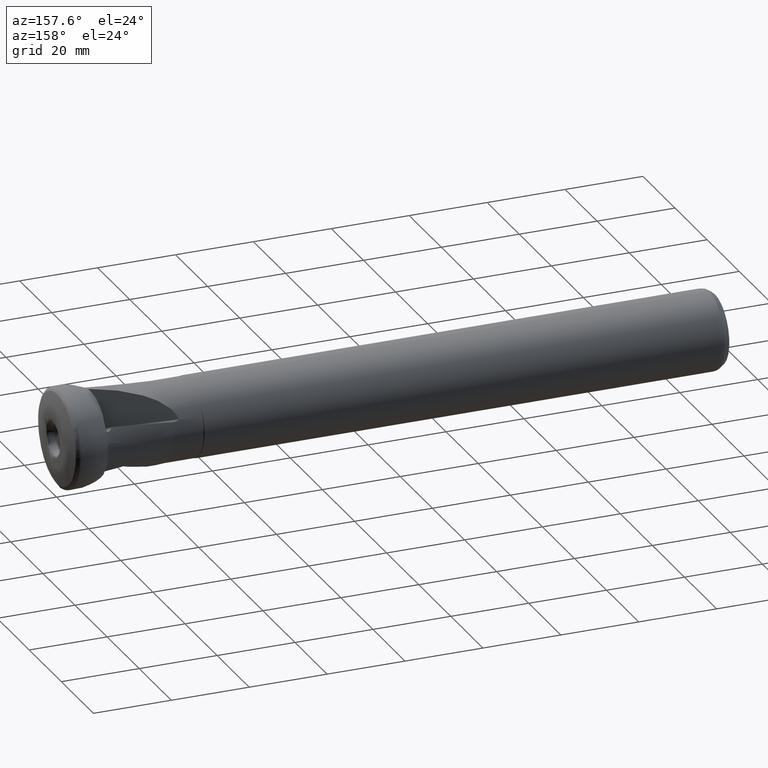
[diagram: clean part render]
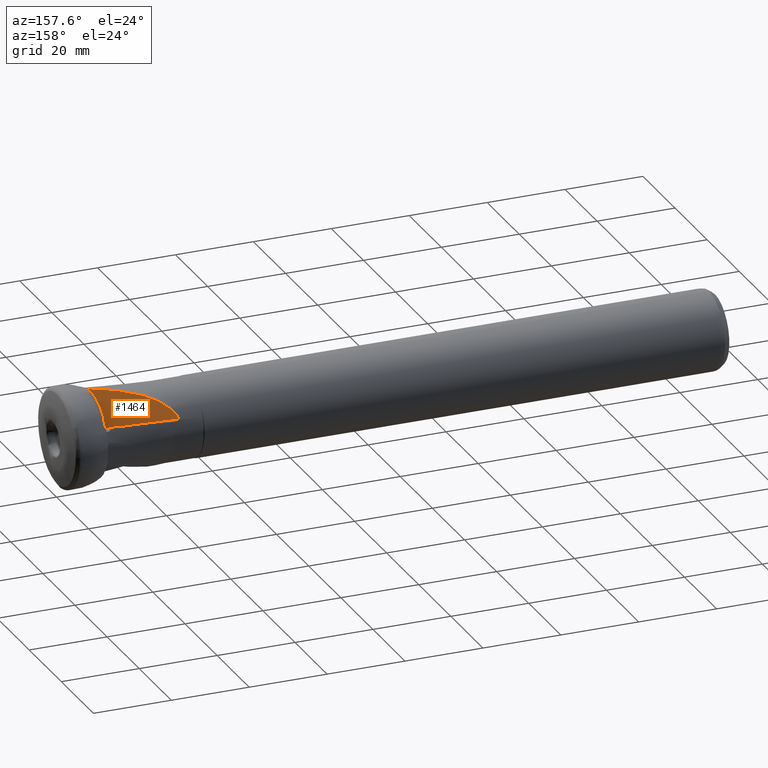
[diagram: same view with one face highlighted and labeled with its STEP entity id]
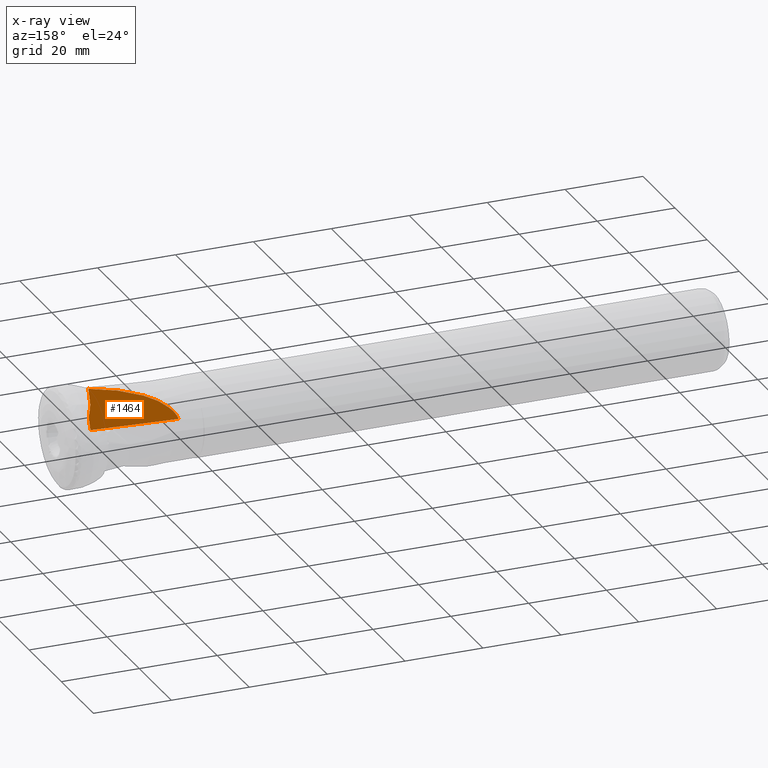
[diagram: x-ray of the same camera — body ghosted, the highlighted face saturated]
A machine part, auxiliary view. The second image highlights one B-rep face of the part: STEP entity #1464.
The next image is the same camera in x-ray: the body ghosted, the highlighted face saturated — about 0% of this face is hidden behind the body in this view.
In plain terms, the highlighted planar face has unit normal (-0.3701, -0.8683, -0.3302).
Its self-contained STEP definition (entity closure, byte-faithful):
#34 = CARTESIAN_POINT ( 'NONE',  ( -27.61564122826636900, 8.963413834609408300, 4.203238326520708100 ) ) ;
#101 = CARTESIAN_POINT ( 'NONE',  ( -16.86874251824682600, 1.855739922466798800, 10.84814431742854000 ) ) ;
#184 = CARTESIAN_POINT ( 'NONE',  ( -8.809361198083662400, -1.484334805425515200, 10.59798843382201200 ) ) ;
#193 = VERTEX_POINT ( 'NONE', #837 ) ;
#200 = CARTESIAN_POINT ( 'NONE',  ( -8.772247899974990700, -0.2813029466145836000, 7.392879770641500600 ) ) ;
#212 = CARTESIAN_POINT ( 'NONE',  ( -8.008849885953161200, 1.828964597262597400, 0.9880425032267883300 ) ) ;
#355 = CARTESIAN_POINT ( 'NONE',  ( -8.029264572803558800, 0.5343311011464219100, 4.415311757594615500 ) ) ;
#390 = EDGE_CURVE ( 'NONE', #2407, #193, #1813, .T. ) ;
#479 = CARTESIAN_POINT ( 'NONE',  ( -8.810321178378581300, -1.445892021877493500, 10.49797469597539600 ) ) ;
#488 = CARTESIAN_POINT ( 'NONE',  ( -8.626668308227394300, -0.03581247867179425400, 6.584163108031313000 ) ) ;
#490 = CARTESIAN_POINT ( 'NONE',  ( -27.61564122826636900, 8.963413834609408300, 4.203238326520708100 ) ) ;
#493 = CARTESIAN_POINT ( 'NONE',  ( -8.008849885953161200, 1.828964597262599400, 0.9880425032267898800 ) ) ;
#502 = CARTESIAN_POINT ( 'NONE',  ( -25.80000000000000100, 7.206657879620563800, 6.787789198708425800 ) ) ;
#713 = VERTEX_POINT ( 'NONE', #355 ) ;
#776 = CARTESIAN_POINT ( 'NONE',  ( -8.812428754891604000, -1.330846290105649300, 10.19781096538148500 ) ) ;
#788 = CARTESIAN_POINT ( 'NONE',  ( -8.400509622133460800, 0.1769991327255253900, 5.771063089334365500 ) ) ;
#803 = DIRECTION ( 'NONE',  ( -0.3701102517259635700, -0.8683207217601667200, -0.3302083065721499500 ) ) ;
#815 = EDGE_CURVE ( 'NONE', #1291, #2407, #2875, .T. ) ;
#837 = CARTESIAN_POINT ( 'NONE',  ( -25.80000000000000100, 7.206657879620563800, 6.787789198708425800 ) ) ;
#887 = ORIENTED_EDGE ( 'NONE', *, *, #3512, .T. ) ;
#916 = LINE ( 'NONE', #493, #3249 ) ;
#1096 = CARTESIAN_POINT ( 'NONE',  ( -8.816561759687939300, -1.075373070746809900, 9.530647183024111500 ) ) ;
#1108 = CARTESIAN_POINT ( 'NONE',  ( -8.176938290410074500, 0.3910066280983208200, 4.957718363106650400 ) ) ;
#1258 = VECTOR ( 'NONE', #1911, 1000.000000000000000 ) ;
#1283 = CARTESIAN_POINT ( 'NONE',  ( -22.92936467704586100, 4.987555778449552300, 9.405654221941683000 ) ) ;
#1291 = VERTEX_POINT ( 'NONE', #3204 ) ;
#1333 = ORIENTED_EDGE ( 'NONE', *, *, #815, .T. ) ;
#1392 = CARTESIAN_POINT ( 'NONE',  ( -8.740307214642635700, -1.608908404413212300, 10.84817066287859600 ) ) ;
#1403 = CARTESIAN_POINT ( 'NONE',  ( -8.816094279808940100, -0.7710488903506985700, 8.729867778619457400 ) ) ;
#1416 = CARTESIAN_POINT ( 'NONE',  ( -8.029264572803558800, 0.5343311011464219100, 4.415311757594615500 ) ) ;
#1417 = CARTESIAN_POINT ( 'NONE',  ( -27.41783301019366800, 8.517416510551241200, 5.154328479900343000 ) ) ;
#1464 = ADVANCED_FACE ( 'Fl�che12', ( #2323 ), #1716, .F. ) ;
#1500 = ORIENTED_EDGE ( 'NONE', *, *, #2592, .T. ) ;
#1698 = CARTESIAN_POINT ( 'NONE',  ( -8.815983503714962300, -0.5680846605352803900, 8.196025829812121800 ) ) ;
#1716 = PLANE ( 'NONE',  #3080 ) ;
#1813 =( BOUNDED_CURVE ( )  B_SPLINE_CURVE ( 3, ( #490, #1417, #2337, #502 ),
 .UNSPECIFIED., .F., .F. ) 
 B_SPLINE_CURVE_WITH_KNOTS ( ( 4, 4 ),
 ( 3.216684054430979200, 3.533673707329589400 ),
 .UNSPECIFIED. ) 
 CURVE ( )  GEOMETRIC_REPRESENTATION_ITEM ( )  RATIONAL_B_SPLINE_CURVE ( ( 1.000000000000000000, 0.9916439776872798500, 0.9916439776872798500, 1.000000000000000000 ) ) 
 REPRESENTATION_ITEM ( '' )  );
#1902 = EDGE_CURVE ( 'NONE', #2408, #713, #3868, .T. ) ;
#1911 = DIRECTION ( 'NONE',  ( -0.9289711258367763200, 0.3480661720179835100, 0.1259467635880329500 ) ) ;
#1986 = CARTESIAN_POINT ( 'NONE',  ( -8.808739993176711600, -1.497259284078811900, 10.63127856647261500 ) ) ;
#1998 = CARTESIAN_POINT ( 'NONE',  ( -8.803594301779597200, -0.4208508354323531900, 7.794971255193382300 ) ) ;
#2220 = CARTESIAN_POINT ( 'NONE',  ( -8.740307214642635700, -1.608908404413212300, 10.84817066287859600 ) ) ;
#2286 = EDGE_LOOP ( 'NONE', ( #1500, #2326, #887, #1333, #2477 ) ) ;
#2311 = CARTESIAN_POINT ( 'NONE',  ( -8.810016241289693200, -1.458700773734822500, 10.53131499691803100 ) ) ;
#2323 = FACE_OUTER_BOUND ( 'NONE', #2286, .T. ) ;
#2324 = CARTESIAN_POINT ( 'NONE',  ( -8.735105501019457800, -0.1948572508413580800, 7.123930232406306300 ) ) ;
#2326 = ORIENTED_EDGE ( 'NONE', *, *, #1902, .T. ) ;
#2337 = CARTESIAN_POINT ( 'NONE',  ( -26.80751947391127700, 7.926896796313355000, 6.023104952889310600 ) ) ;
#2407 = VERTEX_POINT ( 'NONE', #34 ) ;
#2408 = VERTEX_POINT ( 'NONE', #2476 ) ;
#2476 = CARTESIAN_POINT ( 'NONE',  ( -8.740307214642635700, -1.608908404413212300, 10.84817066287859600 ) ) ;
#2477 = ORIENTED_EDGE ( 'NONE', *, *, #390, .T. ) ;
#2527 = CARTESIAN_POINT ( 'NONE',  ( -27.68627112306955200, 8.989877388137005100, 4.212814088797504300 ) ) ;
#2592 = EDGE_CURVE ( 'NONE', #193, #2408, #3161, .T. ) ;
#2613 = CARTESIAN_POINT ( 'NONE',  ( -8.811733069721789500, -1.381889535522184300, 10.33125529918755200 ) ) ;
#2624 = CARTESIAN_POINT ( 'NONE',  ( -8.550934102924426100, 0.03499191560531933500, 6.313088980730751300 ) ) ;
#2788 = CARTESIAN_POINT ( 'NONE',  ( -25.80000000000000100, 7.206657879620563800, 6.787789198708425800 ) ) ;
#2875 = LINE ( 'NONE', #2527, #1258 ) ;
#2923 = CARTESIAN_POINT ( 'NONE',  ( -8.813964737758379200, -1.177918199004973200, 9.797390549526245000 ) ) ;
#2931 = CARTESIAN_POINT ( 'NONE',  ( -8.325561742397697500, 0.2481303105708135800, 5.500010991188417200 ) ) ;
#2948 = DIRECTION ( 'NONE',  ( 0.9199208428287069000, -0.3921041225609872000, 0.0000000000000000000 ) ) ;
#3080 = AXIS2_PLACEMENT_3D ( 'NONE', #212, #803, #2948 ) ;
#3161 =( BOUNDED_CURVE ( )  B_SPLINE_CURVE ( 3, ( #2788, #1283, #101, #2220 ),
 .UNSPECIFIED., .F., .F. ) 
 B_SPLINE_CURVE_WITH_KNOTS ( ( 4, 4 ),
 ( 3.477441010317361400, 4.344822891366477300 ),
 .UNSPECIFIED. ) 
 CURVE ( )  GEOMETRIC_REPRESENTATION_ITEM ( )  RATIONAL_B_SPLINE_CURVE ( ( 1.000000000000000000, 0.9382806109319690200, 0.9382806109319690200, 1.000000000000000000 ) ) 
 REPRESENTATION_ITEM ( '' )  );
#3204 = CARTESIAN_POINT ( 'NONE',  ( -8.012170204761533300, 1.618400703796910600, 1.545466021403842300 ) ) ;
#3218 = DIRECTION ( 'NONE',  ( 0.005572156574991122400, 0.3533681706926227200, -0.9354677370238127000 ) ) ;
#3227 = CARTESIAN_POINT ( 'NONE',  ( -8.817057440993915300, -0.8721629611090624400, 8.996838405872200200 ) ) ;
#3240 = CARTESIAN_POINT ( 'NONE',  ( -8.105073412247536500, 0.4636491651778553700, 4.686147519522227100 ) ) ;
#3249 = VECTOR ( 'NONE', #3218, 1000.000000000000100 ) ;
#3507 = CARTESIAN_POINT ( 'NONE',  ( -8.768100953148493900, -1.575070916184625900, 10.79034339364780400 ) ) ;
#3512 = EDGE_CURVE ( 'NONE', #713, #1291, #916, .T. ) ;
#3522 = CARTESIAN_POINT ( 'NONE',  ( -8.815189874647225900, -0.6191587121545320000, 8.329441392759447300 ) ) ;
#3801 = CARTESIAN_POINT ( 'NONE',  ( -8.789041125600528300, -1.542558887262453200, 10.72831982999252400 ) ) ;
#3814 = CARTESIAN_POINT ( 'NONE',  ( -8.810210081402013700, -0.4689208440760577200, 7.928792093683653300 ) ) ;
#3868 = B_SPLINE_CURVE_WITH_KNOTS ( 'NONE', 3,
 ( #1392, #3507, #3801, #1986, #184, #2311, #479, #2613, #776, #2923, #1096, #3227, #1403, #3522, #1698, #3814, #1998, #200, #2324, #488, #2624, #788, #2931, #1108, #3240, #1416 ),
 .UNSPECIFIED., .F., .F.,
 ( 4, 2, 2, 2, 2, 2, 2, 2, 2, 2, 2, 2, 4 ),
 ( 7.150655873984627700E-005, 0.0002886185580387294600, 0.0003971745576881710600, 0.0005057305573376126100, 0.0009399545559353643700, 0.001808402553130862700, 0.002676850550326361000, 0.003111074548924112900, 0.003545298547521864300, 0.004413746544717367200, 0.005282194541912870100, 0.006150642539108374700, 0.007019090536303877600 ),
 .UNSPECIFIED. ) ;